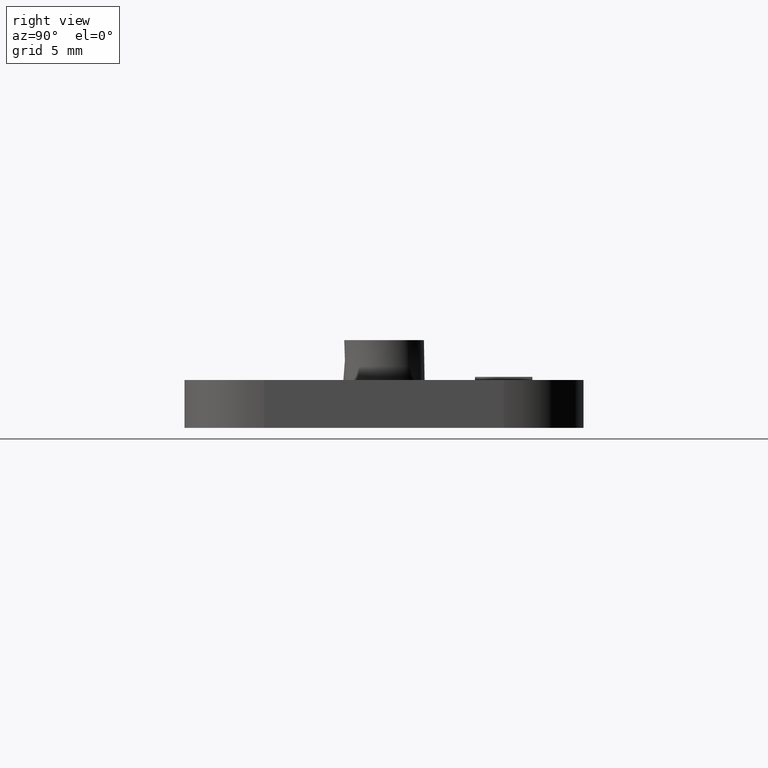
[diagram: clean part render]
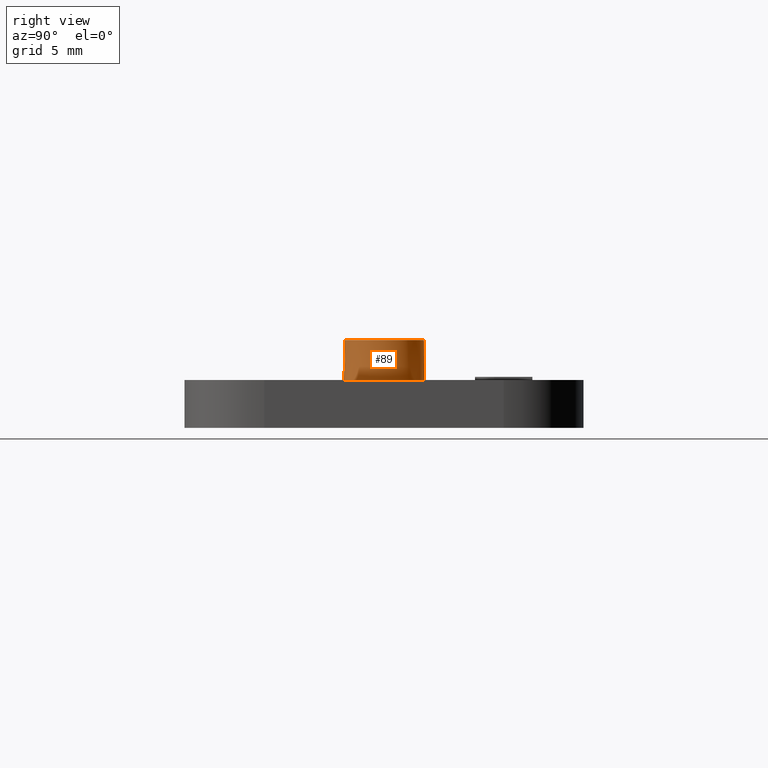
[diagram: same view with one face highlighted and labeled with its STEP entity id]
A machine part, right view. The second image highlights one B-rep face of the part: STEP entity #89.
In plain terms, the highlighted conical surface has half-angle 1 deg.
Its self-contained STEP definition (entity closure, byte-faithful):
#89 = ADVANCED_FACE( '', ( #175, #176 ), #177, .T. );
#175 = FACE_OUTER_BOUND( '', #308, .T. );
#176 = FACE_BOUND( '', #309, .T. );
#177 = CONICAL_SURFACE( '', #310, 2.50000000000000, 0.0174532925199433 );
#308 = EDGE_LOOP( '', ( #546 ) );
#309 = EDGE_LOOP( '', ( #547 ) );
#310 = AXIS2_PLACEMENT_3D( '', #548, #549, #550 );
#546 = ORIENTED_EDGE( '', *, *, #902, .F. );
#547 = ORIENTED_EDGE( '', *, *, #954, .T. );
#548 = CARTESIAN_POINT( '', ( 13.0000000000000, 2.72201152676926E-015, 5.49999999999999 ) );
#549 = DIRECTION( '', ( 0.000000000000000, -6.12303176911189E-017, -1.00000000000000 ) );
#550 = DIRECTION( '', ( 0.000000000000000, 1.00000000000000, -6.12303176911189E-017 ) );
#902 = EDGE_CURVE( '', #1070, #1070, #1071, .T. );
#954 = EDGE_CURVE( '', #1164, #1164, #1165, .T. );
#1070 = VERTEX_POINT( '', #1333 );
#1071 = CIRCLE( '', #1334, 2.54363766232055 );
#1164 = VERTEX_POINT( '', #1471 );
#1165 = CIRCLE( '', #1472, 2.50000000000000 );
#1333 = CARTESIAN_POINT( '', ( 13.0000000000000, 2.54363766232055, 2.99999999999999 ) );
#1334 = AXIS2_PLACEMENT_3D( '', #1688, #1689, #1690 );
#1471 = CARTESIAN_POINT( '', ( 15.5000000000000, 2.87508732099706E-015, 5.49999999999999 ) );
#1472 = AXIS2_PLACEMENT_3D( '', #1756, #1757, #1758 );
#1688 = CARTESIAN_POINT( '', ( 13.0000000000000, 2.56893573254147E-015, 2.99999999999999 ) );
#1689 = DIRECTION( '', ( 0.000000000000000, -6.12303176911189E-017, -1.00000000000000 ) );
#1690 = DIRECTION( '', ( 0.000000000000000, 1.00000000000000, -6.12303176911189E-017 ) );
#1756 = CARTESIAN_POINT( '', ( 13.0000000000000, 2.72201152676926E-015, 5.49999999999999 ) );
#1757 = DIRECTION( '', ( 4.37905770101505E-049, -6.12303176911189E-017, -1.00000000000000 ) );
#1758 = DIRECTION( '', ( 1.00000000000000, 6.12303176911188E-017, -3.74915180455534E-033 ) );